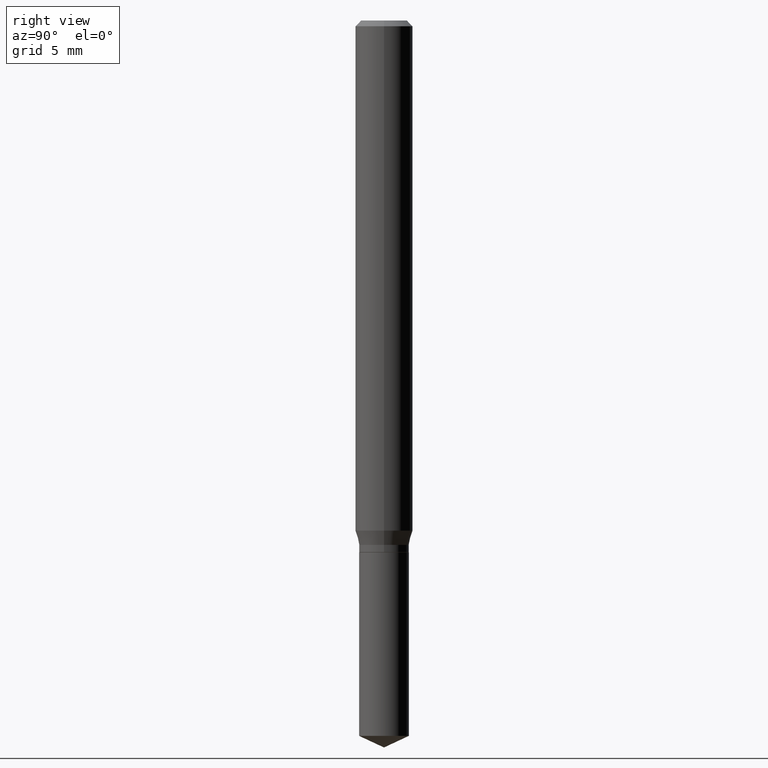
[diagram: clean part render]
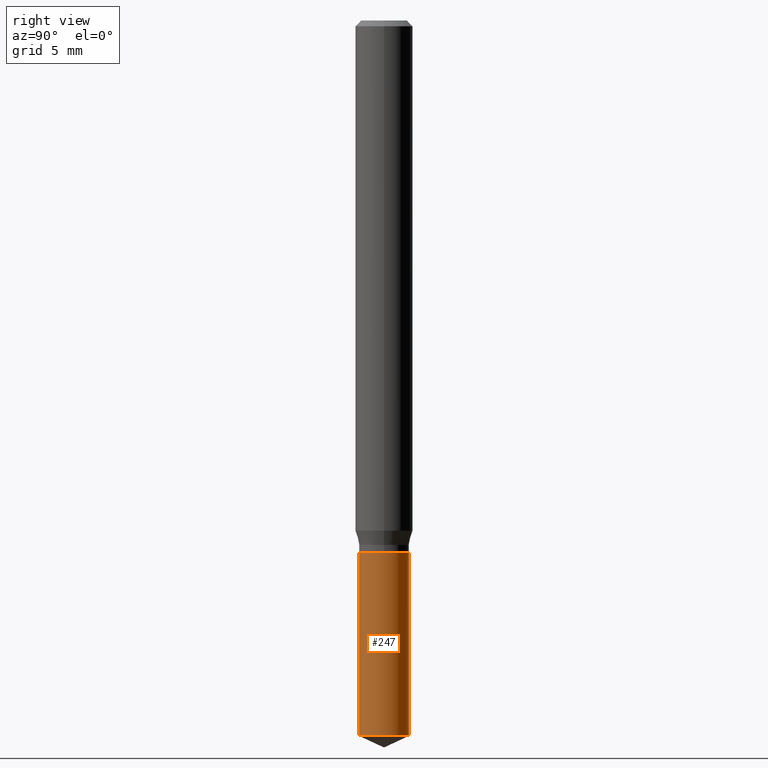
[diagram: same view with one face highlighted and labeled with its STEP entity id]
A machine part, right view. The second image highlights one B-rep face of the part: STEP entity #247.
In plain terms, the highlighted cylindrical surface (edge-blend (fillet) strip) has radius 1.3005 mm, axis along (-0, 0, 1).
Its self-contained STEP definition (entity closure, byte-faithful):
#9 = DIRECTION ( 'NONE',  ( -6.982962677686265133E-15, -1.000000000000000000, 2.667820306312756424E-15 ) ) ;
#30 = VERTEX_POINT ( 'NONE', #423 ) ;
#34 = ORIENTED_EDGE ( 'NONE', *, *, #302, .T. ) ;
#45 = DIRECTION ( 'NONE',  ( -2.445458899330790108E-29, 3.491495526022433205E-15, 1.000000000000000000 ) ) ;
#48 = FACE_OUTER_BOUND ( 'NONE', #350, .T. ) ;
#56 = ORIENTED_EDGE ( 'NONE', *, *, #254, .F. ) ;
#68 = ORIENTED_EDGE ( 'NONE', *, *, #349, .T. ) ;
#82 = AXIS2_PLACEMENT_3D ( 'NONE', #370, #441, #325 ) ;
#84 = DIRECTION ( 'NONE',  ( -2.445458899330790108E-29, 3.491495526022433599E-15, 1.000000000000000000 ) ) ;
#91 = LINE ( 'NONE', #253, #433 ) ;
#118 = CARTESIAN_POINT ( 'NONE',  ( -3.575276890975009060E-16, -0.05120000000000516499, -1.472225047902463890 ) ) ;
#131 = VERTEX_POINT ( 'NONE', #118 ) ;
#153 = CIRCLE ( 'NONE', #82, 0.05120000000000000939 ) ;
#178 = VERTEX_POINT ( 'NONE', #196 ) ;
#196 = CARTESIAN_POINT ( 'NONE',  ( 3.637978807092074523E-16, 0.05119999999999487461, -1.472225047902464334 ) ) ;
#198 = CARTESIAN_POINT ( 'NONE',  ( 2.676565608369631794E-29, -3.821426325363822773E-15, -1.094499999999999806 ) ) ;
#209 = CARTESIAN_POINT ( 'NONE',  ( -3.575276890975101258E-16, -0.05120000000000383272, -1.094499999999999806 ) ) ;
#236 = CYLINDRICAL_SURFACE ( 'NONE', #356, 0.05120000000000000939 ) ;
#238 = DIRECTION ( 'NONE',  ( -2.445458899330790108E-29, 3.491495526022433205E-15, 1.000000000000000000 ) ) ;
#247 = ADVANCED_FACE ( 'NONE', ( #48 ), #236, .T. ) ;
#253 = CARTESIAN_POINT ( 'NONE',  ( -3.575276890975101258E-16, -0.05120000000000383272, -1.094499999999999806 ) ) ;
#254 = EDGE_CURVE ( 'NONE', #412, #30, #351, .T. ) ;
#275 = CARTESIAN_POINT ( 'NONE',  ( 3.637978807091980353E-16, 0.05119999999999617912, -1.094500000000000028 ) ) ;
#302 = EDGE_CURVE ( 'NONE', #178, #30, #391, .T. ) ;
#325 = DIRECTION ( 'NONE',  ( -6.982962677686265133E-15, -1.000000000000000000, 5.335640612625512847E-15 ) ) ;
#334 = AXIS2_PLACEMENT_3D ( 'NONE', #428, #238, #9 ) ;
#349 = EDGE_CURVE ( 'NONE', #131, #178, #153, .T. ) ;
#350 = EDGE_LOOP ( 'NONE', ( #68, #34, #56, #483 ) ) ;
#351 = CIRCLE ( 'NONE', #334, 0.05120000000000000939 ) ;
#356 = AXIS2_PLACEMENT_3D ( 'NONE', #198, #45, #357 ) ;
#357 = DIRECTION ( 'NONE',  ( -6.982962677686265133E-15, -1.000000000000000000, 2.667820306312756424E-15 ) ) ;
#370 = CARTESIAN_POINT ( 'NONE',  ( 3.600276688262861312E-29, -5.140251640181885643E-15, -1.472225047902464112 ) ) ;
#391 = LINE ( 'NONE', #275, #426 ) ;
#402 = EDGE_CURVE ( 'NONE', #131, #412, #91, .T. ) ;
#407 = DIRECTION ( 'NONE',  ( -2.445458899330790108E-29, 3.491495526022433599E-15, 1.000000000000000000 ) ) ;
#412 = VERTEX_POINT ( 'NONE', #209 ) ;
#423 = CARTESIAN_POINT ( 'NONE',  ( 3.637978807092073044E-16, 0.05119999999999617912, -1.094500000000000028 ) ) ;
#426 = VECTOR ( 'NONE', #84, 39.37007874015748143 ) ;
#428 = CARTESIAN_POINT ( 'NONE',  ( 2.676565608369631794E-29, -3.821426325363822773E-15, -1.094499999999999806 ) ) ;
#433 = VECTOR ( 'NONE', #407, 39.37007874015748143 ) ;
#441 = DIRECTION ( 'NONE',  ( -2.445458899330790108E-29, 3.491495526022433205E-15, 1.000000000000000000 ) ) ;
#483 = ORIENTED_EDGE ( 'NONE', *, *, #402, .F. ) ;